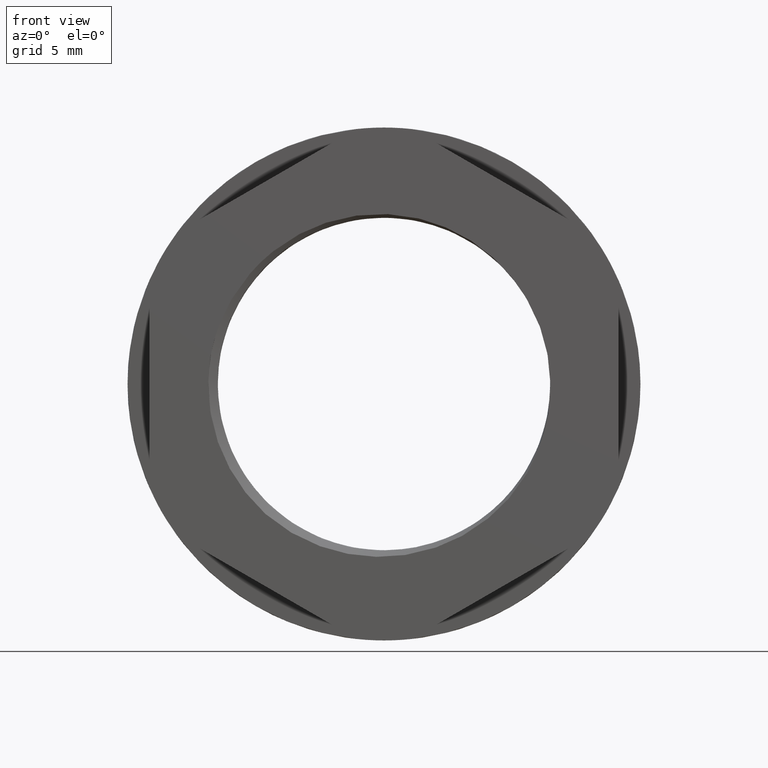
[diagram: clean part render]
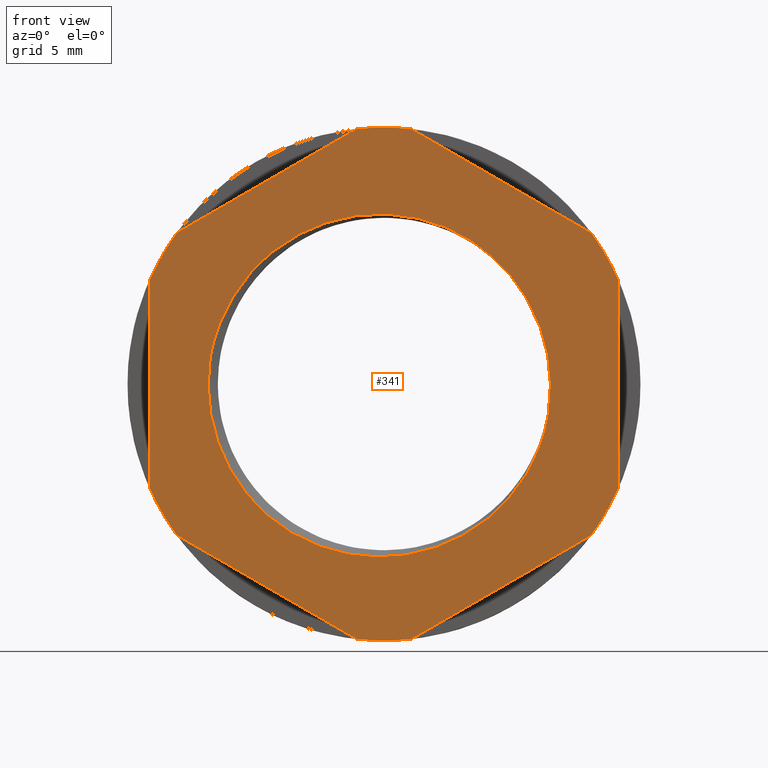
[diagram: same view with one face highlighted and labeled with its STEP entity id]
A machine part, front view. The second image highlights one B-rep face of the part: STEP entity #341.
In plain terms, the highlighted planar face has unit normal (0, 1, 0).
Its self-contained STEP definition (entity closure, byte-faithful):
#27 = FACE_OUTER_BOUND ( 'NONE', #912, .T. ) ;
#39 = FACE_BOUND ( 'NONE', #902, .T. ) ;
#43 = PLANE ( 'NONE',  #2144 ) ;
#44 = CARTESIAN_POINT ( 'NONE',  ( 11.29999999999999900, -18.83904097094790200, 0.0000000000000000000 ) ) ;
#57 = DIRECTION ( 'NONE',  ( 0.0000000000000000000, -0.0000000000000000000, 1.000000000000000000 ) ) ;
#67 = CARTESIAN_POINT ( 'NONE',  ( 8.673617379884039400E-016, -18.83904097094790200, 0.0000000000000000000 ) ) ;
#73 = DIRECTION ( 'NONE',  ( 0.0000000000000000000, 1.000000000000000000, 0.0000000000000000000 ) ) ;
#85 = DIRECTION ( 'NONE',  ( 0.0000000000000000000, 1.000000000000000000, 0.0000000000000000000 ) ) ;
#88 = DIRECTION ( 'NONE',  ( 0.0000000000000000000, 0.0000000000000000000, 1.000000000000000000 ) ) ;
#127 = DIRECTION ( 'NONE',  ( 0.0000000000000000000, 0.0000000000000000000, 1.000000000000000000 ) ) ;
#131 = CARTESIAN_POINT ( 'NONE',  ( 8.673617379884039400E-016, -18.83904097094790200, 0.0000000000000000000 ) ) ;
#134 = DIRECTION ( 'NONE',  ( -0.0000000000000000000, -1.000000000000000000, -0.0000000000000000000 ) ) ;
#141 = CARTESIAN_POINT ( 'NONE',  ( 1.758049112017766800, -18.83904097094790200, 16.30549794761673600 ) ) ;
#143 = CARTESIAN_POINT ( 'NONE',  ( 2.875782488590063300E-015, -18.83904097094790200, -16.40000000000000200 ) ) ;
#144 = CARTESIAN_POINT ( 'NONE',  ( -11.11079993741830300, -18.83904097094790200, 1.764263231682091400 ) ) ;
#146 = CARTESIAN_POINT ( 'NONE',  ( 8.673617379884039400E-016, -18.83904097094790200, 0.0000000000000000000 ) ) ;
#148 = CARTESIAN_POINT ( 'NONE',  ( 15.00000000000000000, -18.83904097094790200, -6.630233781700320100 ) ) ;
#162 = CARTESIAN_POINT ( 'NONE',  ( 8.673617379884039400E-016, -18.83904097094790200, 16.40000000000000200 ) ) ;
#172 = DIRECTION ( 'NONE',  ( 0.0000000000000000000, 0.0000000000000000000, 1.000000000000000000 ) ) ;
#174 = DIRECTION ( 'NONE',  ( 0.0000000000000000000, 1.000000000000000000, 0.0000000000000000000 ) ) ;
#179 = CARTESIAN_POINT ( 'NONE',  ( -13.24195088798224000, -18.83904097094790200, -9.675264165916420500 ) ) ;
#182 = CARTESIAN_POINT ( 'NONE',  ( 15.00000000000000000, -18.83904097094790200, 6.630233781700318300 ) ) ;
#184 = CARTESIAN_POINT ( 'NONE',  ( 7.005116609118015700, -18.83904097094790200, 8.060216446645577900 ) ) ;
#185 = CARTESIAN_POINT ( 'NONE',  ( -14.99999999999999600, -18.83904097094790200, -6.630233781700316500 ) ) ;
#188 = CARTESIAN_POINT ( 'NONE',  ( -7.586861160879403900, -18.83904097094790200, -8.306746518676231300 ) ) ;
#189 = CARTESIAN_POINT ( 'NONE',  ( -1.758049112017723700, -18.83904097094790200, 16.30549794761674000 ) ) ;
#190 = CARTESIAN_POINT ( 'NONE',  ( -1.758049112017732400, -18.83904097094790200, -16.30549794761674000 ) ) ;
#191 = CARTESIAN_POINT ( 'NONE',  ( -15.00000000000000000, -18.83904097094790200, 6.630233781700311200 ) ) ;
#192 = CARTESIAN_POINT ( 'NONE',  ( -13.24195088798226100, -18.83904097094790200, 9.675264165916390300 ) ) ;
#195 = CARTESIAN_POINT ( 'NONE',  ( 13.24195088798223600, -18.83904097094790200, 9.675264165916429300 ) ) ;
#198 = CARTESIAN_POINT ( 'NONE',  ( 10.50376618384434100, -18.83904097094790200, -1.926043568885486200 ) ) ;
#203 = CARTESIAN_POINT ( 'NONE',  ( 1.758049112017730600, -18.83904097094790200, -16.30549794761674000 ) ) ;
#206 = CARTESIAN_POINT ( 'NONE',  ( 13.24195088798225900, -18.83904097094790200, -9.675264165916397400 ) ) ;
#257 = EDGE_CURVE ( 'NONE', #943, #964, #2066, .T. ) ;
#260 = EDGE_CURVE ( 'NONE', #939, #957, #2075, .T. ) ;
#265 = EDGE_CURVE ( 'NONE', #953, #926, #2187, .T. ) ;
#275 = EDGE_CURVE ( 'NONE', #967, #973, #600, .T. ) ;
#281 = EDGE_CURVE ( 'NONE', #971, #972, #655, .T. ) ;
#287 = EDGE_CURVE ( 'NONE', #948, #953, #2188, .T. ) ;
#295 = EDGE_CURVE ( 'NONE', #928, #943, #699, .T. ) ;
#296 = EDGE_CURVE ( 'NONE', #957, #959, #719, .T. ) ;
#303 = EDGE_CURVE ( 'NONE', #964, #939, #767, .T. ) ;
#304 = EDGE_CURVE ( 'NONE', #920, #928, #2073, .T. ) ;
#305 = EDGE_CURVE ( 'NONE', #944, #948, #2189, .T. ) ;
#318 = EDGE_CURVE ( 'NONE', #968, #969, #883, .T. ) ;
#325 = EDGE_CURVE ( 'NONE', #973, #968, #2118, .T. ) ;
#326 = EDGE_CURVE ( 'NONE', #972, #967, #2127, .T. ) ;
#330 = EDGE_CURVE ( 'NONE', #919, #971, #2129, .T. ) ;
#341 = ADVANCED_FACE ( 'NONE', ( #39, #27 ), #43, .F. ) ;
#342 = EDGE_CURVE ( 'NONE', #969, #920, #2139, .T. ) ;
#357 = EDGE_CURVE ( 'NONE', #926, #944, #2158, .T. ) ;
#373 = EDGE_CURVE ( 'NONE', #959, #919, #2149, .T. ) ;
#377 = CARTESIAN_POINT ( 'NONE',  ( 8.673617379884039400E-016, -18.83904097094790200, 0.0000000000000000000 ) ) ;
#379 = DIRECTION ( 'NONE',  ( 0.0000000000000000000, 0.0000000000000000000, 1.000000000000000000 ) ) ;
#383 = DIRECTION ( 'NONE',  ( 0.0000000000000000000, 1.000000000000000000, 0.0000000000000000000 ) ) ;
#387 = CARTESIAN_POINT ( 'NONE',  ( 8.673617379884039400E-016, -18.83904097094790200, 0.0000000000000000000 ) ) ;
#388 = DIRECTION ( 'NONE',  ( 0.0000000000000000000, 1.000000000000000000, 0.0000000000000000000 ) ) ;
#403 = DIRECTION ( 'NONE',  ( 0.0000000000000000000, 0.0000000000000000000, 1.000000000000000000 ) ) ;
#419 = DIRECTION ( 'NONE',  ( 0.0000000000000000000, 0.0000000000000000000, 1.000000000000000000 ) ) ;
#431 = CARTESIAN_POINT ( 'NONE',  ( 6.646936407992124700, -18.83904097094788800, 8.387164987414067200 ) ) ;
#434 = CARTESIAN_POINT ( 'NONE',  ( -6.887786028928037000, -18.83904097094789900, 8.656466501874634300 ) ) ;
#437 = CARTESIAN_POINT ( 'NONE',  ( 7.005116609118015700, -18.83904097094790200, 8.060216446645577900 ) ) ;
#438 = CARTESIAN_POINT ( 'NONE',  ( -0.07043677851631065200, -18.83904097094790900, 10.91547977851264100 ) ) ;
#440 = CARTESIAN_POINT ( 'NONE',  ( -6.090383158958769800, -18.83904097094789900, 9.206860074634825300 ) ) ;
#441 = CARTESIAN_POINT ( 'NONE',  ( -7.267366370916293200, -18.83904097094791300, 8.355656896978814500 ) ) ;
#447 = CARTESIAN_POINT ( 'NONE',  ( 2.823650360851505300, -18.83904097094790200, 10.47206480607275700 ) ) ;
#451 = CARTESIAN_POINT ( 'NONE',  ( -2.968842813773703500, -18.83904097094791700, 10.54443108716881700 ) ) ;
#452 = CARTESIAN_POINT ( 'NONE',  ( 5.467162648380395700, -18.83904097094789500, 9.242297372678866200 ) ) ;
#454 = CARTESIAN_POINT ( 'NONE',  ( -10.60850280910687200, -18.83904097094789900, 3.634178770990642300 ) ) ;
#455 = CARTESIAN_POINT ( 'NONE',  ( -1.526797314892441200, -18.83904097094790900, 10.81096802051681900 ) ) ;
#457 = CARTESIAN_POINT ( 'NONE',  ( -11.02329238506951400, -18.83904097094790200, 2.241921836899958300 ) ) ;
#458 = CARTESIAN_POINT ( 'NONE',  ( 6.267794658779825700, -18.83904097094789500, 8.689072522499296600 ) ) ;
#460 = CARTESIAN_POINT ( 'NONE',  ( -9.274919213003924400, -18.83904097094790900, 6.231993044203271400 ) ) ;
#462 = CARTESIAN_POINT ( 'NONE',  ( -5.672317573337148900, -18.83904097094791700, 9.456577068288263300 ) ) ;
#464 = CARTESIAN_POINT ( 'NONE',  ( -10.42904436824655300, -18.83904097094790600, 4.088991451548207800 ) ) ;
#465 = CARTESIAN_POINT ( 'NONE',  ( 0.8976575373325048600, -18.83904097094790200, 10.85740023223507200 ) ) ;
#466 = CARTESIAN_POINT ( 'NONE',  ( -10.90526004882640400, -18.83904097094790200, 2.711417572145890200 ) ) ;
#467 = CARTESIAN_POINT ( 'NONE',  ( -3.435585072809673500, -18.83904097094790600, 10.41433228637873200 ) ) ;
#468 = CARTESIAN_POINT ( 'NONE',  ( -7.987841852582604000, -18.83904097094791700, 7.702218627148334400 ) ) ;
#469 = CARTESIAN_POINT ( 'NONE',  ( -8.330721252739987600, -18.83904097094790900, 7.347115885593303200 ) ) ;
#470 = CARTESIAN_POINT ( 'NONE',  ( 5.042645183479800500, -18.83904097094790600, 9.494796367863299800 ) ) ;
#471 = CARTESIAN_POINT ( 'NONE',  ( -2.015852076372675100, -18.83904097094790600, 10.74282647048267800 ) ) ;
#473 = CARTESIAN_POINT ( 'NONE',  ( -4.349826976374917100, -18.83904097094791300, 10.09316765465800900 ) ) ;
#474 = CARTESIAN_POINT ( 'NONE',  ( -4.797328854601461000, -18.83904097094791300, 9.902108900826528200 ) ) ;
#475 = CARTESIAN_POINT ( 'NONE',  ( -9.800233237378801500, -18.83904097094790200, 5.417959105298924000 ) ) ;
#476 = CARTESIAN_POINT ( 'NONE',  ( -11.11079993741830300, -18.83904097094790200, 1.764263231682091400 ) ) ;
#478 = CARTESIAN_POINT ( 'NONE',  ( 3.739083996547516000, -18.83904097094790900, 10.15434379852757900 ) ) ;
#600 = LINE ( 'NONE', #606, #2067 ) ;
#606 = CARTESIAN_POINT ( 'NONE',  ( -15.00000000000000000, -18.83904097094790600, 6.742217736027219700 ) ) ;
#634 = DIRECTION ( 'NONE',  ( 0.0000000000000000000, 0.0000000000000000000, 1.000000000000000000 ) ) ;
#650 = CARTESIAN_POINT ( 'NONE',  ( -13.33893183724558000, -18.83904097094790600, -9.619272188752962200 ) ) ;
#655 = LINE ( 'NONE', #650, #2082 ) ;
#659 = DIRECTION ( 'NONE',  ( -0.8660254037844387100, 0.0000000000000000000, 0.4999999999999998900 ) ) ;
#673 = CARTESIAN_POINT ( 'NONE',  ( 10.50376618384434100, -18.83904097094790200, -1.926043568885486200 ) ) ;
#681 = CARTESIAN_POINT ( 'NONE',  ( 10.57508316248702600, -18.83904097094691500, -1.473277081756839000 ) ) ;
#687 = CARTESIAN_POINT ( 'NONE',  ( 1.661068162754435000, -18.83904097094790600, -16.36148992478017000 ) ) ;
#689 = CARTESIAN_POINT ( 'NONE',  ( 10.65547338890179900, -18.83904097094789200, -0.09865790187651535300 ) ) ;
#691 = CARTESIAN_POINT ( 'NONE',  ( 9.055996457908575400, -18.83904097094789500, 5.590710677642958300 ) ) ;
#692 = CARTESIAN_POINT ( 'NONE',  ( 8.548775882547603900, -18.83904097094789500, 6.353002111627753300 ) ) ;
#693 = CARTESIAN_POINT ( 'NONE',  ( 10.62052950927791700, -18.83904097094789200, -1.017349474635495000 ) ) ;
#695 = CARTESIAN_POINT ( 'NONE',  ( 9.285446168575006700, -18.83904097094804400, 5.194766834375951900 ) ) ;
#699 = LINE ( 'NONE', #701, #2079 ) ;
#701 = CARTESIAN_POINT ( 'NONE',  ( 13.33893183724558000, -18.83904097094790600, 9.619272188752972900 ) ) ;
#702 = CARTESIAN_POINT ( 'NONE',  ( 7.665877778372920800, -18.83904097094790900, 7.421674225030356500 ) ) ;
#703 = CARTESIAN_POINT ( 'NONE',  ( 9.876730814455154200, -18.83904097094789900, 3.943668017905609200 ) ) ;
#704 = CARTESIAN_POINT ( 'NONE',  ( 7.343504120797816400, -18.83904097094794100, 7.751334764156590400 ) ) ;
#708 = CARTESIAN_POINT ( 'NONE',  ( 8.270994060045785200, -18.83904097094791300, 6.719342990791637300 ) ) ;
#709 = CARTESIAN_POINT ( 'NONE',  ( 7.005116609118015700, -18.83904097094790200, 8.060216446645577900 ) ) ;
#719 = LINE ( 'NONE', #687, #2074 ) ;
#724 = CARTESIAN_POINT ( 'NONE',  ( 10.64466065656831800, -18.83904097094790200, 0.3672732447393625100 ) ) ;
#730 = CARTESIAN_POINT ( 'NONE',  ( 9.695325071701507400, -18.83904097094803700, 4.372854541308729600 ) ) ;
#731 = CARTESIAN_POINT ( 'NONE',  ( 10.52525052359395000, -18.83904097094790200, 1.744316662086510000 ) ) ;
#732 = CARTESIAN_POINT ( 'NONE',  ( 10.33347029746595600, -18.83904097094789500, 2.638458420914978400 ) ) ;
#738 = DIRECTION ( 'NONE',  ( 0.8660254037844387100, 0.0000000000000000000, -0.4999999999999998900 ) ) ;
#742 = CARTESIAN_POINT ( 'NONE',  ( -6.827792907547043400, -18.83904097094790600, -8.925962345725626100 ) ) ;
#757 = DIRECTION ( 'NONE',  ( 0.0000000000000000000, 0.0000000000000000000, -1.000000000000000000 ) ) ;
#759 = CARTESIAN_POINT ( 'NONE',  ( -7.216993059869486700, -18.83904097094789900, -8.629319536519158600 ) ) ;
#760 = DIRECTION ( 'NONE',  ( -0.8660254037844387100, 0.0000000000000000000, -0.4999999999999998900 ) ) ;
#763 = DIRECTION ( 'NONE',  ( 0.0000000000000000000, 1.000000000000000000, 0.0000000000000000000 ) ) ;
#767 = LINE ( 'NONE', #777, #2071 ) ;
#769 = DIRECTION ( 'NONE',  ( 0.0000000000000000000, 0.0000000000000000000, 1.000000000000000000 ) ) ;
#773 = CARTESIAN_POINT ( 'NONE',  ( -6.010889368041597800, -18.83904097094789900, -9.467603319865009600 ) ) ;
#775 = CARTESIAN_POINT ( 'NONE',  ( -5.585746877903418700, -18.83904097094788800, -9.710587631543750900 ) ) ;
#777 = CARTESIAN_POINT ( 'NONE',  ( 15.00000000000000000, -18.83904097094790600, -6.742217736027219700 ) ) ;
#780 = CARTESIAN_POINT ( 'NONE',  ( -7.586861160879403900, -18.83904097094790200, -8.306746518676231300 ) ) ;
#786 = CARTESIAN_POINT ( 'NONE',  ( 8.673617379884039400E-016, -18.83904097094790200, 0.0000000000000000000 ) ) ;
#788 = CARTESIAN_POINT ( 'NONE',  ( -3.341911720402790400, -18.83904097094789900, -10.63008205350657500 ) ) ;
#789 = CARTESIAN_POINT ( 'NONE',  ( 9.453588529610266600, -18.83904097094790600, -5.156476725604838900 ) ) ;
#792 = CARTESIAN_POINT ( 'NONE',  ( 2.898756308287032500, -18.83904097094790600, -10.60258286626930200 ) ) ;
#796 = CARTESIAN_POINT ( 'NONE',  ( -0.4661677262209717500, -18.83904097094790600, -11.09603431633338600 ) ) ;
#799 = CARTESIAN_POINT ( 'NONE',  ( -1.432062727284452800, -18.83904097094791300, -11.03488830173058800 ) ) ;
#804 = CARTESIAN_POINT ( 'NONE',  ( -4.713416821567678400, -18.83904097094788800, -10.13652201515403400 ) ) ;
#805 = CARTESIAN_POINT ( 'NONE',  ( 0.9992565493124921900, -18.83904097094790900, -10.99378359724486900 ) ) ;
#808 = CARTESIAN_POINT ( 'NONE',  ( -2.864899607487879400, -18.83904097094791300, -10.75593923753015700 ) ) ;
#814 = CARTESIAN_POINT ( 'NONE',  ( 1.483809214769208100, -18.83904097094790600, -10.92688976394184400 ) ) ;
#816 = CARTESIAN_POINT ( 'NONE',  ( 5.554560546041962300, -18.83904097094789200, -9.400187471187299700 ) ) ;
#817 = CARTESIAN_POINT ( 'NONE',  ( 7.954247778394840700, -18.83904097094790200, -7.356002185817991400 ) ) ;
#818 = CARTESIAN_POINT ( 'NONE',  ( 10.35099805331782700, -18.83904097094789900, -2.895914855071666200 ) ) ;
#819 = CARTESIAN_POINT ( 'NONE',  ( 6.732473297245952000, -18.83904097094791300, -8.550748927441794900 ) ) ;
#822 = CARTESIAN_POINT ( 'NONE',  ( 8.422631879128005000, -18.83904097094790200, -6.799929667663597000 ) ) ;
#823 = CARTESIAN_POINT ( 'NONE',  ( 3.814918247861260000, -18.83904097094789900, -10.28266761558891000 ) ) ;
#824 = CARTESIAN_POINT ( 'NONE',  ( 9.097749930794375200, -18.83904097094790200, -5.795431828409134000 ) ) ;
#825 = CARTESIAN_POINT ( 'NONE',  ( 10.50376618384434100, -18.83904097094790200, -1.926043568885486200 ) ) ;
#826 = CARTESIAN_POINT ( 'NONE',  ( 5.138006327828526800, -18.83904097094790600, -9.648078461146582200 ) ) ;
#827 = CARTESIAN_POINT ( 'NONE',  ( 6.351793602859761000, -18.83904097094788500, -8.851522073586632900 ) ) ;
#828 = CARTESIAN_POINT ( 'NONE',  ( 7.791485371785843700, -18.83904097094790900, -7.536473899234536600 ) ) ;
#830 = CARTESIAN_POINT ( 'NONE',  ( 8.708517740747780100, -18.83904097094790600, -6.409794680925401200 ) ) ;
#831 = CARTESIAN_POINT ( 'NONE',  ( 10.07077971534817900, -18.83904097094790200, -3.825033534992918300 ) ) ;
#838 = CARTESIAN_POINT ( 'NONE',  ( 4.268153106045389200, -18.83904097094790600, -10.08969544398900800 ) ) ;
#839 = CARTESIAN_POINT ( 'NONE',  ( 7.275787854967038700, -18.83904097094791700, -8.058749661738598700 ) ) ;
#840 = CARTESIAN_POINT ( 'NONE',  ( -4.264689666376219700, -18.83904097094790600, -10.32051287990628200 ) ) ;
#841 = CARTESIAN_POINT ( 'NONE',  ( 2.432516602687518200, -18.83904097094790900, -10.73135888841456500 ) ) ;
#842 = CARTESIAN_POINT ( 'NONE',  ( 9.220872358284175600, -18.83904097094790200, -5.585767798383814800 ) ) ;
#843 = CARTESIAN_POINT ( 'NONE',  ( 9.563425215774312700, -18.83904097094790600, -4.936204554614367800 ) ) ;
#844 = CARTESIAN_POINT ( 'NONE',  ( 7.452544617933032400, -18.83904097094790900, -7.887537341382436100 ) ) ;
#849 = CARTESIAN_POINT ( 'NONE',  ( -1.661068162754425000, -18.83904097094790600, 16.36148992478017000 ) ) ;
#878 = DIRECTION ( 'NONE',  ( 0.8660254037844387100, 0.0000000000000000000, 0.4999999999999998900 ) ) ;
#883 = LINE ( 'NONE', #849, #2109 ) ;
#902 = EDGE_LOOP ( 'NONE', ( #1000, #1041, #1017, #976 ) ) ;
#912 = EDGE_LOOP ( 'NONE', ( #980, #1014, #1009, #1011, #986, #1021, #1025, #1016, #1023, #996, #1006, #1010, #990, #1054 ) ) ;
#919 = VERTEX_POINT ( 'NONE', #143 ) ;
#920 = VERTEX_POINT ( 'NONE', #162 ) ;
#926 = VERTEX_POINT ( 'NONE', #144 ) ;
#928 = VERTEX_POINT ( 'NONE', #141 ) ;
#929 = CARTESIAN_POINT ( 'NONE',  ( 8.673617379884039400E-016, -18.83904097094790200, 0.0000000000000000000 ) ) ;
#931 = DIRECTION ( 'NONE',  ( 0.0000000000000000000, 1.000000000000000000, 0.0000000000000000000 ) ) ;
#939 = VERTEX_POINT ( 'NONE', #148 ) ;
#943 = VERTEX_POINT ( 'NONE', #195 ) ;
#944 = VERTEX_POINT ( 'NONE', #188 ) ;
#948 = VERTEX_POINT ( 'NONE', #198 ) ;
#953 = VERTEX_POINT ( 'NONE', #184 ) ;
#957 = VERTEX_POINT ( 'NONE', #206 ) ;
#959 = VERTEX_POINT ( 'NONE', #203 ) ;
#964 = VERTEX_POINT ( 'NONE', #182 ) ;
#967 = VERTEX_POINT ( 'NONE', #185 ) ;
#968 = VERTEX_POINT ( 'NONE', #192 ) ;
#969 = VERTEX_POINT ( 'NONE', #189 ) ;
#971 = VERTEX_POINT ( 'NONE', #190 ) ;
#972 = VERTEX_POINT ( 'NONE', #179 ) ;
#973 = VERTEX_POINT ( 'NONE', #191 ) ;
#976 = ORIENTED_EDGE ( 'NONE', *, *, #265, .F. ) ;
#980 = ORIENTED_EDGE ( 'NONE', *, *, #295, .F. ) ;
#986 = ORIENTED_EDGE ( 'NONE', *, *, #325, .F. ) ;
#990 = ORIENTED_EDGE ( 'NONE', *, *, #303, .F. ) ;
#996 = ORIENTED_EDGE ( 'NONE', *, *, #373, .F. ) ;
#1000 = ORIENTED_EDGE ( 'NONE', *, *, #287, .F. ) ;
#1006 = ORIENTED_EDGE ( 'NONE', *, *, #296, .F. ) ;
#1009 = ORIENTED_EDGE ( 'NONE', *, *, #342, .F. ) ;
#1010 = ORIENTED_EDGE ( 'NONE', *, *, #260, .F. ) ;
#1011 = ORIENTED_EDGE ( 'NONE', *, *, #318, .F. ) ;
#1014 = ORIENTED_EDGE ( 'NONE', *, *, #304, .F. ) ;
#1016 = ORIENTED_EDGE ( 'NONE', *, *, #281, .F. ) ;
#1017 = ORIENTED_EDGE ( 'NONE', *, *, #357, .F. ) ;
#1021 = ORIENTED_EDGE ( 'NONE', *, *, #275, .F. ) ;
#1023 = ORIENTED_EDGE ( 'NONE', *, *, #330, .F. ) ;
#1025 = ORIENTED_EDGE ( 'NONE', *, *, #326, .F. ) ;
#1041 = ORIENTED_EDGE ( 'NONE', *, *, #305, .F. ) ;
#1054 = ORIENTED_EDGE ( 'NONE', *, *, #257, .F. ) ;
#1772 = CARTESIAN_POINT ( 'NONE',  ( 8.673617379884039400E-016, -18.83904097094790200, 0.0000000000000000000 ) ) ;
#1780 = DIRECTION ( 'NONE',  ( 0.0000000000000000000, 1.000000000000000000, 0.0000000000000000000 ) ) ;
#1788 = DIRECTION ( 'NONE',  ( 0.0000000000000000000, 0.0000000000000000000, 1.000000000000000000 ) ) ;
#2035 = CARTESIAN_POINT ( 'NONE',  ( 8.673617379884039400E-016, -18.83904097094790200, 0.0000000000000000000 ) ) ;
#2038 = DIRECTION ( 'NONE',  ( 0.0000000000000000000, 0.0000000000000000000, 1.000000000000000000 ) ) ;
#2048 = DIRECTION ( 'NONE',  ( 0.0000000000000000000, 1.000000000000000000, 0.0000000000000000000 ) ) ;
#2066 = CIRCLE ( 'NONE', #2105, 16.40000000000000200 ) ;
#2067 = VECTOR ( 'NONE', #634, 1000.000000000000000 ) ;
#2071 = VECTOR ( 'NONE', #757, 1000.000000000000000 ) ;
#2073 = CIRCLE ( 'NONE', #2083, 16.40000000000000200 ) ;
#2074 = VECTOR ( 'NONE', #760, 1000.000000000000000 ) ;
#2075 = CIRCLE ( 'NONE', #2106, 16.40000000000000200 ) ;
#2079 = VECTOR ( 'NONE', #738, 1000.000000000000000 ) ;
#2082 = VECTOR ( 'NONE', #659, 1000.000000000000000 ) ;
#2083 = AXIS2_PLACEMENT_3D ( 'NONE', #786, #763, #769 ) ;
#2105 = AXIS2_PLACEMENT_3D ( 'NONE', #377, #383, #379 ) ;
#2106 = AXIS2_PLACEMENT_3D ( 'NONE', #387, #388, #403 ) ;
#2108 = AXIS2_PLACEMENT_3D ( 'NONE', #929, #931, #419 ) ;
#2109 = VECTOR ( 'NONE', #878, 1000.000000000000000 ) ;
#2117 = AXIS2_PLACEMENT_3D ( 'NONE', #1772, #1780, #1788 ) ;
#2118 = CIRCLE ( 'NONE', #2108, 16.40000000000000200 ) ;
#2127 = CIRCLE ( 'NONE', #2128, 16.40000000000000200 ) ;
#2128 = AXIS2_PLACEMENT_3D ( 'NONE', #2035, #2048, #2038 ) ;
#2129 = CIRCLE ( 'NONE', #2117, 16.40000000000000200 ) ;
#2139 = CIRCLE ( 'NONE', #2164, 16.40000000000000200 ) ;
#2144 = AXIS2_PLACEMENT_3D ( 'NONE', #44, #85, #57 ) ;
#2149 = CIRCLE ( 'NONE', #2150, 16.40000000000000200 ) ;
#2150 = AXIS2_PLACEMENT_3D ( 'NONE', #146, #174, #172 ) ;
#2156 = AXIS2_PLACEMENT_3D ( 'NONE', #131, #134, #127 ) ;
#2158 = CIRCLE ( 'NONE', #2156, 11.25000000000000000 ) ;
#2164 = AXIS2_PLACEMENT_3D ( 'NONE', #67, #73, #88 ) ;
#2187 = B_SPLINE_CURVE_WITH_KNOTS ( 'NONE', 3,
 ( #437, #431, #458, #452, #470, #478, #447, #465, #438, #455, #471, #451, #467, #473, #474, #462, #440, #434, #441, #468, #469, #460, #475, #464, #454, #466, #457, #476 ),
 .UNSPECIFIED., .F., .F.,
 ( 4, 2, 2, 2, 2, 2, 2, 2, 2, 2, 2, 2, 2, 4 ),
 ( 0.08812605977858463400, 0.08959540457270970300, 0.09106474936683478500, 0.09400343895508492300, 0.09694212854333507400, 0.09841147333746014200, 0.09988081813158522500, 0.1013501629257102900, 0.1028195077198353600, 0.1042888525139604300, 0.1057581973080855000, 0.1086968868963356400, 0.1101662316904607200, 0.1116355764845857700 ),
 .UNSPECIFIED. ) ;
#2188 = B_SPLINE_CURVE_WITH_KNOTS ( 'NONE', 3,
 ( #673, #681, #693, #689, #724, #731, #732, #703, #730, #695, #691, #692, #708, #702, #704, #709 ),
 .UNSPECIFIED., .F., .F.,
 ( 4, 2, 2, 2, 2, 2, 2, 4 ),
 ( 0.02942465023717808300, 0.03081661071796900500, 0.03220857119875992400, 0.03499249216034176100, 0.03638445264113268600, 0.03777641312192360500, 0.03916837360271452400, 0.04056033408350544200 ),
 .UNSPECIFIED. ) ;
#2189 = B_SPLINE_CURVE_WITH_KNOTS ( 'NONE', 3,
 ( #780, #759, #742, #773, #775, #804, #840, #788, #808, #799, #796, #805, #814, #841, #792, #823, #838, #826, #816, #827, #819, #839, #844, #828, #817, #822, #830, #824, #842, #789, #843, #831, #818, #825 ),
 .UNSPECIFIED., .F., .F.,
 ( 4, 2, 2, 2, 2, 2, 2, 2, 2, 2, 2, 2, 2, 2, 2, 2, 4 ),
 ( 0.0000000000000000000, 0.001467998873141775300, 0.002935997746283550700, 0.004403996619425325600, 0.005871995492567099600, 0.008807993238850651100, 0.01027599211199242700, 0.01174399098513420100, 0.01321198985827597800, 0.01467998873141775400, 0.01614798760455952700, 0.01688198704113041300, 0.01761598647770130200, 0.01908398535084308200, 0.01981798478741396800, 0.02055198422398485400, 0.02348798197026841600 ),
 .UNSPECIFIED. ) ;